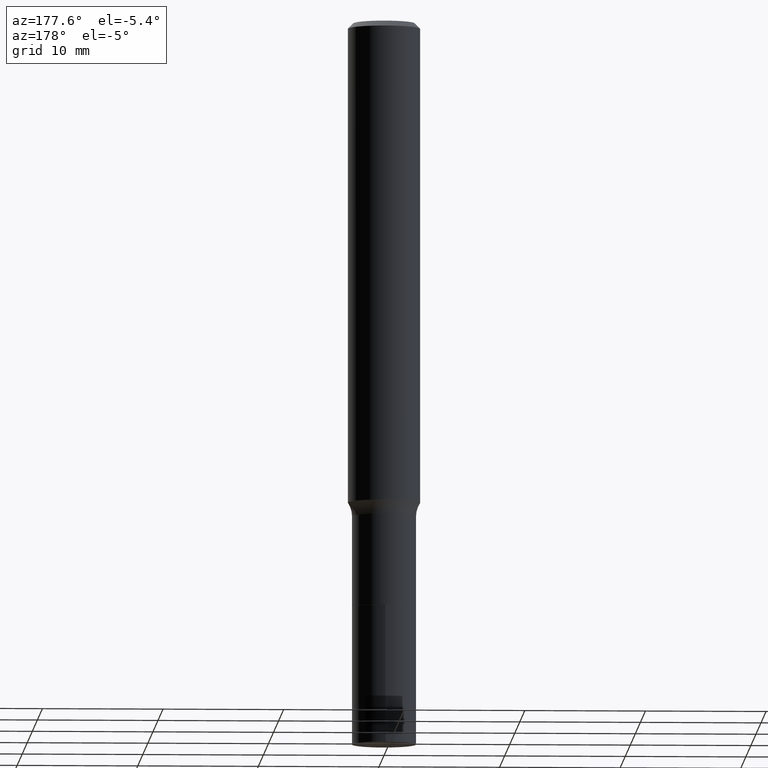
[diagram: clean part render]
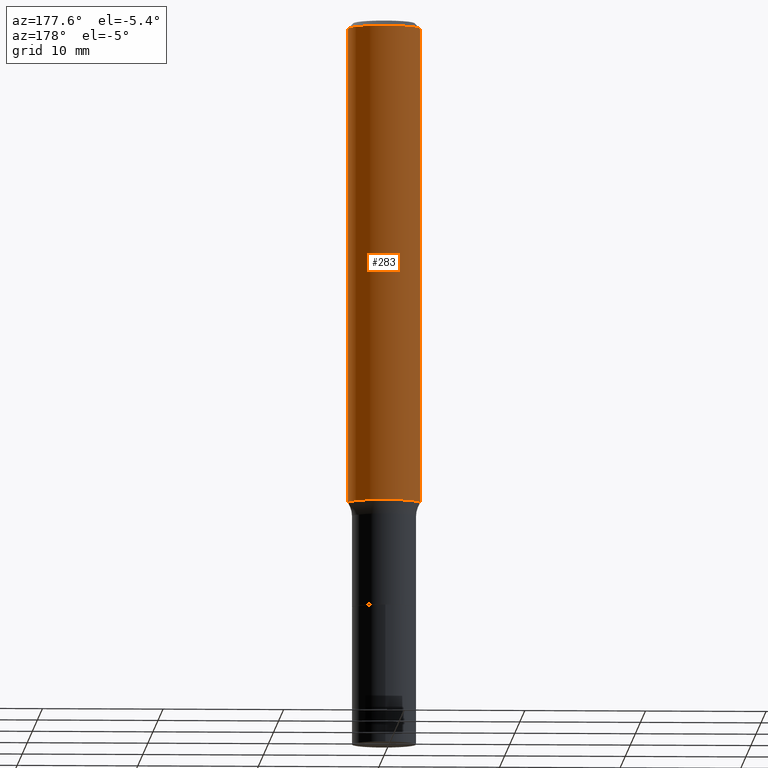
[diagram: same view with one face highlighted and labeled with its STEP entity id]
A machine part, auxiliary view. The second image highlights one B-rep face of the part: STEP entity #283.
In plain terms, the highlighted cylindrical surface (edge-blend (fillet) strip) has radius 2.9997 mm, axis along (-0, 0, 1).
Its self-contained STEP definition (entity closure, byte-faithful):
#7 = CARTESIAN_POINT ( 'NONE',  ( -0.1180999999999999966, -1.932900039203968649E-15, -0.01771500000000010913 ) ) ;
#20 = VECTOR ( 'NONE', #31, 39.37007874015748143 ) ;
#28 = EDGE_LOOP ( 'NONE', ( #88, #95, #353, #97 ) ) ;
#31 = DIRECTION ( 'NONE',  ( -2.445468806185136877E-29, 3.491481338843145188E-15, 1.000000000000000000 ) ) ;
#32 = EDGE_CURVE ( 'NONE', #425, #138, #127, .T. ) ;
#36 = EDGE_CURVE ( 'NONE', #208, #425, #259, .T. ) ;
#65 = DIRECTION ( 'NONE',  ( 1.000000000000000000, -6.982962677686266711E-15, 0.000000000000000000 ) ) ;
#88 = ORIENTED_EDGE ( 'NONE', *, *, #459, .T. ) ;
#95 = ORIENTED_EDGE ( 'NONE', *, *, #206, .T. ) ;
#97 = ORIENTED_EDGE ( 'NONE', *, *, #36, .F. ) ;
#108 = CARTESIAN_POINT ( 'NONE',  ( -0.1181000000000001077, 8.391509709326790846E-16, -5.809262341591049389E-30 ) ) ;
#123 = AXIS2_PLACEMENT_3D ( 'NONE', #443, #410, #126 ) ;
#126 = DIRECTION ( 'NONE',  ( 1.000000000000000000, -6.982962677686266711E-15, 4.876176775795935793E-29 ) ) ;
#127 = CIRCLE ( 'NONE', #433, 0.1180999999999999966 ) ;
#130 = DIRECTION ( 'NONE',  ( -2.445468806185136597E-29, 3.491481338843145583E-15, 1.000000000000000000 ) ) ;
#138 = VERTEX_POINT ( 'NONE', #7 ) ;
#156 = CARTESIAN_POINT ( 'NONE',  ( -0.1181000000000002048, -4.643099457423009297E-15, -1.570178928744370150 ) ) ;
#158 = VECTOR ( 'NONE', #399, 39.37007874015748143 ) ;
#182 = CARTESIAN_POINT ( 'NONE',  ( 0.1181000000000001077, -8.246878922347488542E-16, 5.758764772215005345E-30 ) ) ;
#206 = EDGE_CURVE ( 'NONE', #334, #138, #438, .T. ) ;
#208 = VERTEX_POINT ( 'NONE', #365 ) ;
#213 = CIRCLE ( 'NONE', #268, 0.1181000000000001909 ) ;
#229 = CYLINDRICAL_SURFACE ( 'NONE', #123, 0.1181000000000001077 ) ;
#244 = CARTESIAN_POINT ( 'NONE',  ( 4.332147990156996744E-31, -6.185159191760670395E-17, -0.01771500000000010913 ) ) ;
#259 = LINE ( 'NONE', #182, #20 ) ;
#268 = AXIS2_PLACEMENT_3D ( 'NONE', #276, #130, #346 ) ;
#276 = CARTESIAN_POINT ( 'NONE',  ( 3.839823590373551639E-29, -5.482250428355689861E-15, -1.570178928744370150 ) ) ;
#278 = CARTESIAN_POINT ( 'NONE',  ( 0.1180999999999999966, -8.865394841523547570E-16, -0.01771500000000010913 ) ) ;
#283 = ADVANCED_FACE ( 'NONE', ( #298 ), #229, .T. ) ;
#298 = FACE_OUTER_BOUND ( 'NONE', #28, .T. ) ;
#334 = VERTEX_POINT ( 'NONE', #156 ) ;
#346 = DIRECTION ( 'NONE',  ( 1.000000000000000000, -6.982962677686269077E-15, 0.000000000000000000 ) ) ;
#353 = ORIENTED_EDGE ( 'NONE', *, *, #32, .F. ) ;
#365 = CARTESIAN_POINT ( 'NONE',  ( 0.1181000000000002048, -6.306938320590438124E-15, -1.570178928744370150 ) ) ;
#391 = DIRECTION ( 'NONE',  ( -2.445468806185136597E-29, 3.491481338843145583E-15, 1.000000000000000000 ) ) ;
#399 = DIRECTION ( 'NONE',  ( -2.445468806185136877E-29, 3.491481338843145188E-15, 1.000000000000000000 ) ) ;
#410 = DIRECTION ( 'NONE',  ( -2.445468806185136597E-29, 3.491481338843145583E-15, 1.000000000000000000 ) ) ;
#425 = VERTEX_POINT ( 'NONE', #278 ) ;
#433 = AXIS2_PLACEMENT_3D ( 'NONE', #244, #391, #65 ) ;
#438 = LINE ( 'NONE', #108, #158 ) ;
#443 = CARTESIAN_POINT ( 'NONE',  ( 0.000000000000000000, 0.000000000000000000, 0.000000000000000000 ) ) ;
#459 = EDGE_CURVE ( 'NONE', #208, #334, #213, .T. ) ;